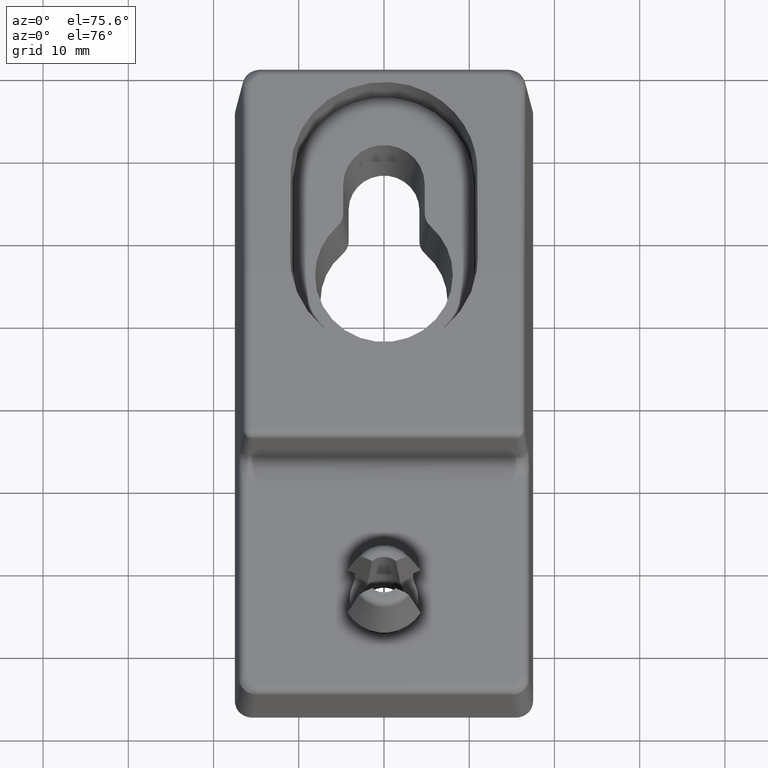
[diagram: clean part render]
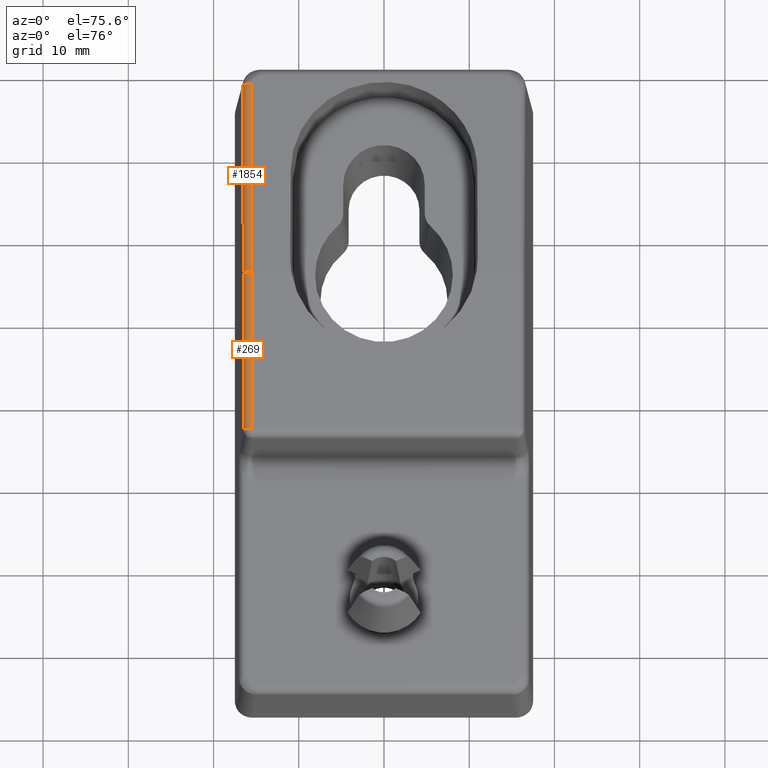
[diagram: same view with one multi-face feature highlighted, each face labeled with its STEP entity id]
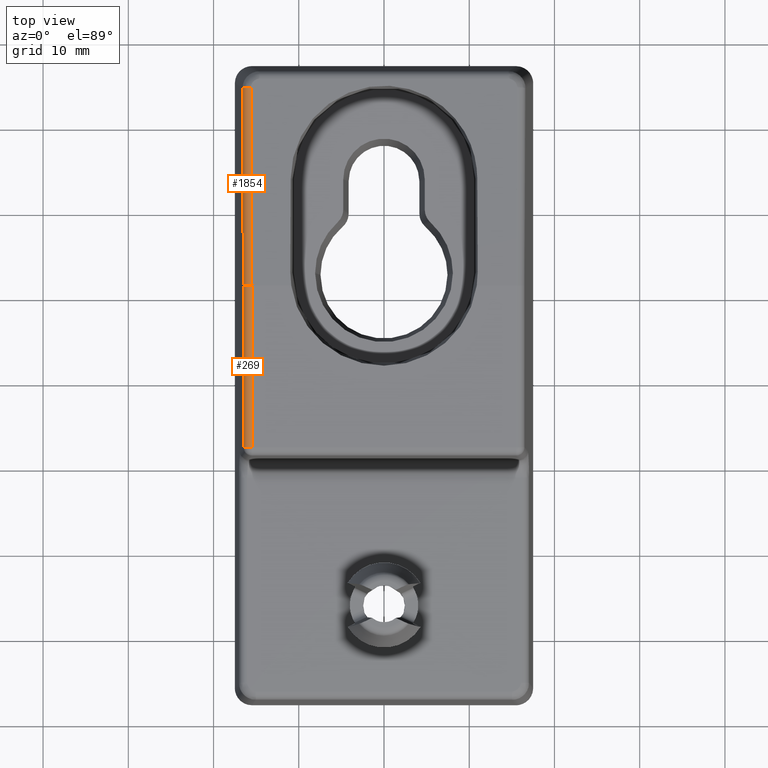
[diagram: same view with one multi-face feature highlighted, each face labeled with its STEP entity id]
A machine part, auxiliary view. The highlighted faces form ONE feature: a constant-radius fillet chain: 2 tangent blend faces with common blend radius 1 mm. The faces share edges in the B-rep.
A second angle (top view) of the same feature is appended — it is thin or edge-on in the first view.
Their STEP definitions:
[1] entity #269 (Cylinder):
#22 = VERTEX_POINT ( 'NONE', #67 ) ;
#67 = CARTESIAN_POINT ( 'NONE',  ( -15.50195764045470300, -7.551957640454706900, 10.00000000000000000 ) ) ;
#269 = ADVANCED_FACE ( 'NONE', ( #2160 ), #1514, .T. ) ;
#293 = DIRECTION ( 'NONE',  ( -8.685520583982840100E-016, -1.000000000000000000, 0.0000000000000000000 ) ) ;
#314 = VERTEX_POINT ( 'NONE', #1228 ) ;
#327 = CARTESIAN_POINT ( 'NONE',  ( -15.50195764045470500, -2.181875037930613100E-015, 9.000000000000001800 ) ) ;
#361 = CARTESIAN_POINT ( 'NONE',  ( -16.50058717520927900, 11.37295261431300400, 9.052335956242943700 ) ) ;
#563 = EDGE_CURVE ( 'NONE', #314, #2322, #2273, .T. ) ;
#601 = CARTESIAN_POINT ( 'NONE',  ( -15.50195764045471400, 11.41661355722157000, 9.999999999999998200 ) ) ;
#635 = EDGE_CURVE ( 'NONE', #22, #1793, #2045, .T. ) ;
#838 = CARTESIAN_POINT ( 'NONE',  ( -16.47118742944948300, 11.39751269820154000, 9.613316523670061300 ) ) ;
#986 = CARTESIAN_POINT ( 'NONE',  ( -15.50195764045471400, 11.41661355722157000, 9.999999999999998200 ) ) ;
#1016 = ORIENTED_EDGE ( 'NONE', *, *, #563, .F. ) ;
#1039 = EDGE_CURVE ( 'NONE', #2322, #22, #1853, .T. ) ;
#1167 = DIRECTION ( 'NONE',  ( -1.407483550488281400E-016, 1.000000000000000000, 1.538632419466662200E-033 ) ) ;
#1228 = CARTESIAN_POINT ( 'NONE',  ( -16.50058717520927900, 11.37295261431300400, 9.052335956242943700 ) ) ;
#1260 = EDGE_CURVE ( 'NONE', #1793, #314, #1498, .T. ) ;
#1292 = CARTESIAN_POINT ( 'NONE',  ( -16.06370806679638400, 11.41532795359985100, 10.00000000029327300 ) ) ;
#1498 = LINE ( 'NONE', #1873, #2433 ) ;
#1514 = CYLINDRICAL_SURFACE ( 'NONE', #2401, 0.9999999999999991100 ) ;
#1675 = ORIENTED_EDGE ( 'NONE', *, *, #635, .F. ) ;
#1707 = CARTESIAN_POINT ( 'NONE',  ( -15.50195764045470300, -7.551957640454706900, 9.000000000000001800 ) ) ;
#1793 = VERTEX_POINT ( 'NONE', #2748 ) ;
#1853 = LINE ( 'NONE', #2370, #2948 ) ;
#1873 = CARTESIAN_POINT ( 'NONE',  ( -16.50058717520928300, 36.97500000000000100, 9.052335956242943700 ) ) ;
#1946 = DIRECTION ( 'NONE',  ( 1.407483550488281400E-016, -1.000000000000000000, 0.0000000000000000000 ) ) ;
#1991 = DIRECTION ( 'NONE',  ( 1.000000000000000000, 1.407483550488280900E-016, 0.0000000000000000000 ) ) ;
#2016 = EDGE_LOOP ( 'NONE', ( #1675, #2761, #1016, #2300 ) ) ;
#2045 = CIRCLE ( 'NONE', #2833, 1.000000000000000900 ) ;
#2160 = FACE_OUTER_BOUND ( 'NONE', #2016, .T. ) ;
#2203 = DIRECTION ( 'NONE',  ( 1.000000000000000000, -8.673617379884027600E-016, 0.0000000000000000000 ) ) ;
#2273 =( BOUNDED_CURVE ( )  B_SPLINE_CURVE ( 3, ( #361, #838, #1292, #601 ),
 .UNSPECIFIED., .F., .T. ) 
 B_SPLINE_CURVE_WITH_KNOTS ( ( 4, 4 ),
 ( 1.570796326794896600, 3.089232776552018700 ),
 .UNSPECIFIED. ) 
 CURVE ( )  GEOMETRIC_REPRESENTATION_ITEM ( )  RATIONAL_B_SPLINE_CURVE ( ( 1.000000000000000000, 0.8169162472217387200, 0.8169162472217387200, 1.000000000000000000 ) ) 
 REPRESENTATION_ITEM ( '' )  );
#2300 = ORIENTED_EDGE ( 'NONE', *, *, #1260, .F. ) ;
#2322 = VERTEX_POINT ( 'NONE', #986 ) ;
#2370 = CARTESIAN_POINT ( 'NONE',  ( -15.50195764045470500, -2.181875037930613100E-015, 10.00000000000000000 ) ) ;
#2401 = AXIS2_PLACEMENT_3D ( 'NONE', #327, #1946, #1991 ) ;
#2433 = VECTOR ( 'NONE', #1167, 1000.000000000000000 ) ;
#2685 = DIRECTION ( 'NONE',  ( 1.407483550488281400E-016, -1.000000000000000000, 0.0000000000000000000 ) ) ;
#2748 = CARTESIAN_POINT ( 'NONE',  ( -16.50058717520927600, -7.551957640454706000, 9.052335956242943700 ) ) ;
#2761 = ORIENTED_EDGE ( 'NONE', *, *, #1039, .F. ) ;
#2833 = AXIS2_PLACEMENT_3D ( 'NONE', #1707, #293, #2203 ) ;
#2948 = VECTOR ( 'NONE', #2685, 1000.000000000000000 ) ;
[2] entity #1854 (Cylinder):
#27 = ORIENTED_EDGE ( 'NONE', *, *, #1189, .F. ) ;
#54 = CARTESIAN_POINT ( 'NONE',  ( -16.62069417845488300, 37.56809669036394400, 6.760557810160217500 ) ) ;
#120 = DIRECTION ( 'NONE',  ( -0.004567591281845887100, 0.9961843062872833800, -0.08715483358257433700 ) ) ;
#224 = DIRECTION ( 'NONE',  ( -1.000000000000000000, 0.0000000000000000000, 0.0000000000000000000 ) ) ;
#257 = VECTOR ( 'NONE', #2188, 1000.000000000000100 ) ;
#288 = CARTESIAN_POINT ( 'NONE',  ( -15.49908507833831800, 10.83360718333260500, 10.05100644847863800 ) ) ;
#314 = VERTEX_POINT ( 'NONE', #1228 ) ;
#328 = EDGE_CURVE ( 'NONE', #314, #1399, #3032, .T. ) ;
#361 = CARTESIAN_POINT ( 'NONE',  ( -16.50058717520927900, 11.37295261431300400, 9.052335956242943700 ) ) ;
#430 = CARTESIAN_POINT ( 'NONE',  ( -15.60850092461031800, 34.69702713260340200, 7.963227729959060100 ) ) ;
#563 = EDGE_CURVE ( 'NONE', #314, #2322, #2273, .T. ) ;
#601 = CARTESIAN_POINT ( 'NONE',  ( -15.50195764045471400, 11.41661355722157000, 9.999999999999998200 ) ) ;
#628 = AXIS2_PLACEMENT_3D ( 'NONE', #2971, #120, #1775 ) ;
#646 = VECTOR ( 'NONE', #1953, 1000.000000000000000 ) ;
#804 = DIRECTION ( 'NONE',  ( 0.0000000000000000000, 0.08715574274766051100, 0.9961946980917453200 ) ) ;
#838 = CARTESIAN_POINT ( 'NONE',  ( -16.47118742944948300, 11.39751269820154000, 9.613316523670061300 ) ) ;
#986 = CARTESIAN_POINT ( 'NONE',  ( -15.50195764045471400, 11.41661355722157000, 9.999999999999998200 ) ) ;
#1058 = FACE_OUTER_BOUND ( 'NONE', #3047, .T. ) ;
#1080 = ORIENTED_EDGE ( 'NONE', *, *, #563, .T. ) ;
#1142 = CARTESIAN_POINT ( 'NONE',  ( 112.6269276383535900, 11.41661355722157000, 9.999999999999998200 ) ) ;
#1189 = EDGE_CURVE ( 'NONE', #2097, #2322, #2320, .T. ) ;
#1228 = CARTESIAN_POINT ( 'NONE',  ( -16.50058717520927900, 11.37295261431300400, 9.052335956242943700 ) ) ;
#1252 = CARTESIAN_POINT ( 'NONE',  ( -15.60850092461032000, 34.60987138985574100, 6.967033031867312200 ) ) ;
#1292 = CARTESIAN_POINT ( 'NONE',  ( -16.06370806679638400, 11.41532795359985100, 10.00000000029327300 ) ) ;
#1319 = ORIENTED_EDGE ( 'NONE', *, *, #2309, .F. ) ;
#1366 = CARTESIAN_POINT ( 'NONE',  ( -16.60713045936489600, 34.60987138985574100, 7.019368988110257700 ) ) ;
#1399 = VERTEX_POINT ( 'NONE', #1366 ) ;
#1512 = ORIENTED_EDGE ( 'NONE', *, *, #1735, .F. ) ;
#1735 = EDGE_CURVE ( 'NONE', #2535, #2097, #2103, .T. ) ;
#1775 = DIRECTION ( 'NONE',  ( 0.0000000000000000000, 0.08715574274766045600, 0.9961946980917453200 ) ) ;
#1854 = ADVANCED_FACE ( 'NONE', ( #1058 ), #2888, .T. ) ;
#1953 = DIRECTION ( 'NONE',  ( 0.004567591281845887100, -0.9961843062872832700, 0.08715483358257435100 ) ) ;
#2097 = VERTEX_POINT ( 'NONE', #2830 ) ;
#2103 = LINE ( 'NONE', #288, #646 ) ;
#2112 = AXIS2_PLACEMENT_3D ( 'NONE', #1252, #2453, #804 ) ;
#2188 = DIRECTION ( 'NONE',  ( -0.004567591281845886200, 0.9961843062872832700, -0.08715483358257432300 ) ) ;
#2273 =( BOUNDED_CURVE ( )  B_SPLINE_CURVE ( 3, ( #361, #838, #1292, #601 ),
 .UNSPECIFIED., .F., .T. ) 
 B_SPLINE_CURVE_WITH_KNOTS ( ( 4, 4 ),
 ( 1.570796326794896600, 3.089232776552018700 ),
 .UNSPECIFIED. ) 
 CURVE ( )  GEOMETRIC_REPRESENTATION_ITEM ( )  RATIONAL_B_SPLINE_CURVE ( ( 1.000000000000000000, 0.8169162472217387200, 0.8169162472217387200, 1.000000000000000000 ) ) 
 REPRESENTATION_ITEM ( '' )  );
#2309 = EDGE_CURVE ( 'NONE', #1399, #2535, #2852, .T. ) ;
#2320 = LINE ( 'NONE', #1142, #2885 ) ;
#2322 = VERTEX_POINT ( 'NONE', #986 ) ;
#2343 = ORIENTED_EDGE ( 'NONE', *, *, #328, .F. ) ;
#2453 = DIRECTION ( 'NONE',  ( -0.004567591281845842900, 0.9961843062872830500, -0.08715483358257619700 ) ) ;
#2535 = VERTEX_POINT ( 'NONE', #430 ) ;
#2830 = CARTESIAN_POINT ( 'NONE',  ( -15.50175821303219300, 11.41661355722157000, 9.999999999999998200 ) ) ;
#2852 = CIRCLE ( 'NONE', #2112, 0.9999999999999994400 ) ;
#2885 = VECTOR ( 'NONE', #224, 1000.000000000000000 ) ;
#2888 = CYLINDRICAL_SURFACE ( 'NONE', #628, 1.000000000000000200 ) ;
#2971 = CARTESIAN_POINT ( 'NONE',  ( -15.62206464370030700, 37.56809669036394400, 6.708221853917273800 ) ) ;
#3032 = LINE ( 'NONE', #54, #257 ) ;
#3047 = EDGE_LOOP ( 'NONE', ( #27, #1512, #1319, #2343, #1080 ) ) ;